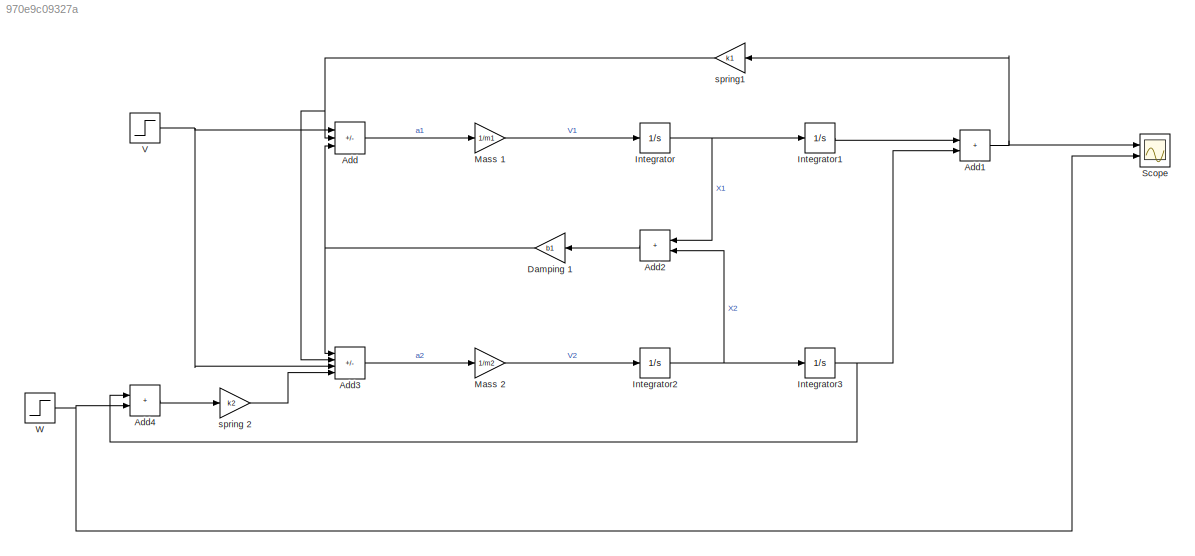
MODEL slx_970e9c09327a
KIND model
CONFIG AbsTol = auto
CONFIG EnableMultiTasking = off
CONFIG FixedStep = auto
CONFIG MaxStep = auto
CONFIG MinStep = auto
CONFIG RelTol = 1e-3
CONFIG SampleTimeConstraint = Unconstrained
CONFIG Solver = VariableStepAuto
CONFIG SolverName = VariableStepAuto
CONFIG StartTime = 0.0
CONFIG StopTime = 10.0
BLOCK [Sum] Add
  IconShape = rectangular
  Inputs = +--
  Ports = [3, 1]
BLOCK [Sum] Add1
  IconShape = rectangular
  Ports = [2, 1]
BLOCK [Sum] Add2
  IconShape = rectangular
  NameLocation = top
  Ports = [2, 1]
BLOCK [Sum] Add3
  IconShape = rectangular
  Inputs = ++-+
  Ports = [4, 1]
BLOCK [Sum] Add4
  IconShape = rectangular
  Ports = [2, 1]
BLOCK [Gain] Damping 1
  Gain = b1
  NameLocation = top
BLOCK [Integrator] Integrator
  Ports = [1, 1]
BLOCK [Integrator] Integrator1
  Ports = [1, 1]
BLOCK [Integrator] Integrator2
  Ports = [1, 1]
BLOCK [Integrator] Integrator3
  Ports = [1, 1]
BLOCK [Gain] Mass 1
  Gain = 1/m1
BLOCK [Gain] Mass 2
  Gain = 1/m2
BLOCK [Scope] Scope
  Floating = off
  NumInputPorts = 2
  Ports = [2]
  ScopeSpecificationString = Simulink.scopes.TimeScopeBlockCfg('CurrentConfiguration', extmgr.ConfigurationSet(extmgr.Configuration('Core','General UI',true),extmgr.Configuration('Core','Source UI',true),extmgr.Configuration('Sources','WiredSimulink',true),extmgr.Configuration('Visuals','Time Domain',true,'SerializedDisplays',{struct('MinYLimReal','-1.03017','MaxYLimReal','9.27153','YLabelReal','','MinYLimMag','0.00000','MaxY...<+1884ch>
BLOCK [Step] V
  SampleTime = 0
BLOCK [Step] W
  SampleTime = 0
BLOCK [Gain] spring 2
  Gain = k2
BLOCK [Gain] spring1
  Gain = k1
  NameLocation = top
NET Add1:1 -> Scope:1, spring1:1
LINE Add2:1 -> Damping 1:1
LINE Add3:1 -> Mass 2:1
LINE Add4:1 -> spring 2:1
LINE Add:1 -> Mass 1:1
NET Damping 1:1 -> Add3:1, Add:3
LINE Integrator1:1 -> Add1:1
NET Integrator2:1 -> Add2:2, Integrator3:1
NET Integrator3:1 -> Add1:2, Add4:1
NET Integrator:1 -> Add2:1, Integrator1:1
LINE Mass 1:1 -> Integrator:1
LINE Mass 2:1 -> Integrator2:1
NET V:1 -> Add3:3, Add:1
NET W:1 -> Add4:2, Scope:2
LINE spring 2:1 -> Add3:4
NET spring1:1 -> Add3:2, Add:2
note: NET lines group one-source signal fan-out (src -> all destinations, sorted); 1:1 wires keep LINE
